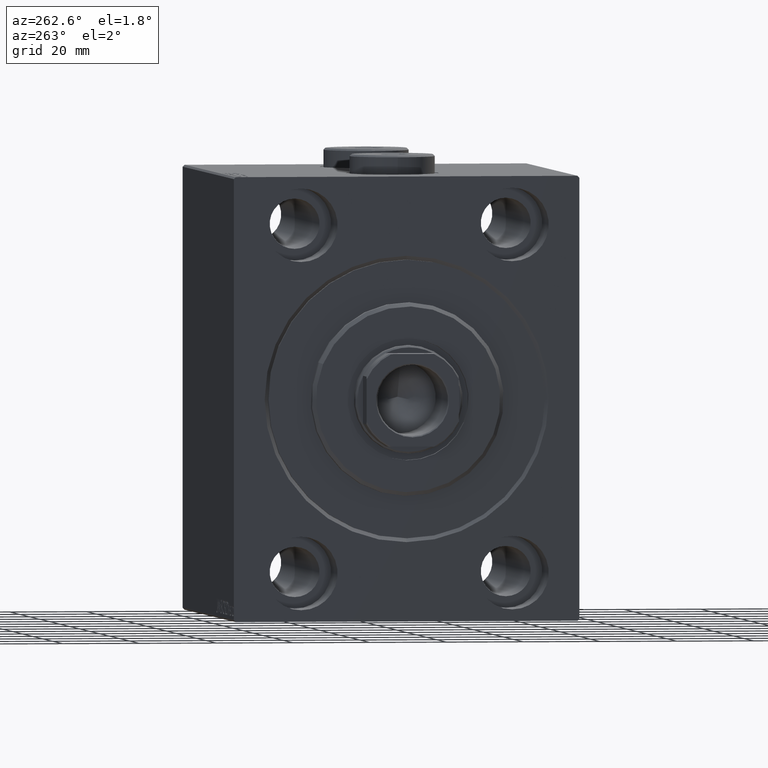
[diagram: clean part render]
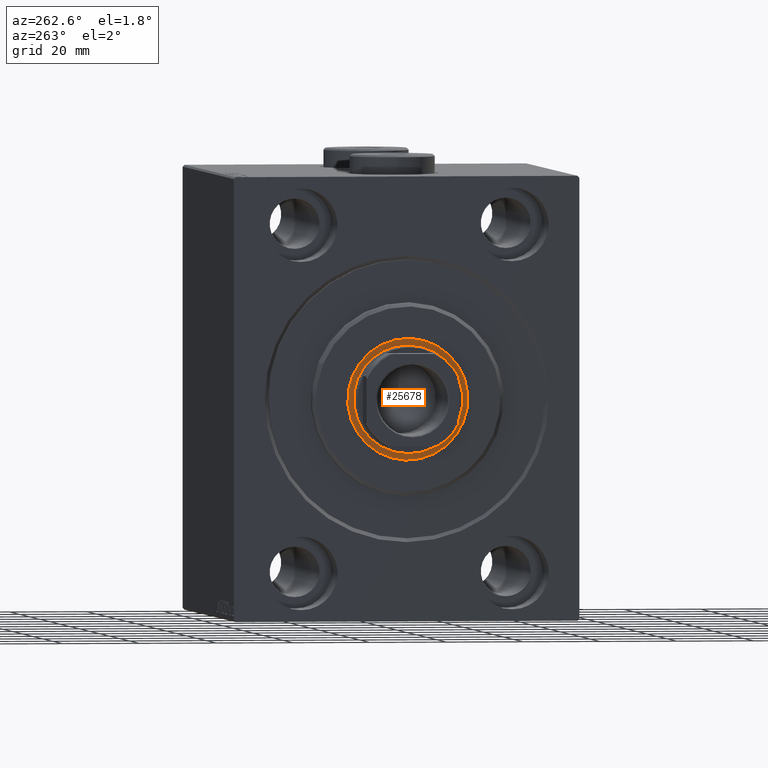
[diagram: same view with one face highlighted and labeled with its STEP entity id]
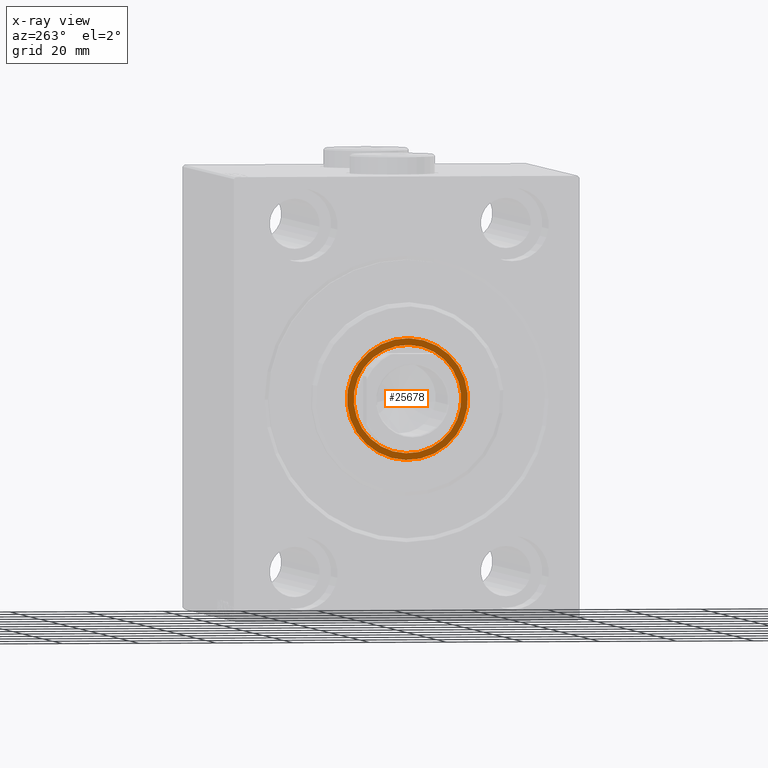
[diagram: x-ray of the same camera — body ghosted, the highlighted face saturated]
A machine part, auxiliary view. The second image highlights one B-rep face of the part: STEP entity #25678.
The next image is the same camera in x-ray: the body ghosted, the highlighted face saturated — about 0% of this face is hidden behind the body in this view.
In plain terms, the highlighted planar face has unit normal (-1, 0, 0).
Its self-contained STEP definition (entity closure, byte-faithful):
#94 = DIRECTION ( 'NONE',  ( 0.000000000000000000, 0.000000000000000000, -1.000000000000000000 ) ) ;
#637 = AXIS2_PLACEMENT_3D ( 'NONE', #44962, #27833, #13696 ) ;
#997 = DIRECTION ( 'NONE',  ( 0.000000000000000000, 0.000000000000000000, -1.000000000000000000 ) ) ;
#1815 = ORIENTED_EDGE ( 'NONE', *, *, #25836, .T. ) ;
#2380 = CARTESIAN_POINT ( 'NONE',  ( 1.500000000000001332, 1.714505518806294835E-15, 14.00000000000000178 ) ) ;
#6173 = CARTESIAN_POINT ( 'NONE',  ( 1.500000000000000000, 0.000000000000000000, 15.75000000000000000 ) ) ;
#7398 = CARTESIAN_POINT ( 'NONE',  ( 1.500000000000001332, 0.000000000000000000, 0.000000000000000000 ) ) ;
#7828 = DIRECTION ( 'NONE',  ( 1.000000000000000000, 0.000000000000000000, 0.000000000000000000 ) ) ;
#9743 = EDGE_CURVE ( 'NONE', #14191, #17977, #31210, .T. ) ;
#10168 = ORIENTED_EDGE ( 'NONE', *, *, #9743, .F. ) ;
#10992 = CIRCLE ( 'NONE', #17529, 14.00000000000000178 ) ;
#11483 = DIRECTION ( 'NONE',  ( 0.000000000000000000, 0.000000000000000000, -1.000000000000000000 ) ) ;
#11812 = VERTEX_POINT ( 'NONE', #6173 ) ;
#13696 = DIRECTION ( 'NONE',  ( 0.000000000000000000, 0.000000000000000000, -1.000000000000000000 ) ) ;
#13778 = CARTESIAN_POINT ( 'NONE',  ( 1.500000000000000000, 0.000000000000000000, 0.000000000000000000 ) ) ;
#14191 = VERTEX_POINT ( 'NONE', #2380 ) ;
#15439 = AXIS2_PLACEMENT_3D ( 'NONE', #25060, #39202, #43071 ) ;
#16808 = ORIENTED_EDGE ( 'NONE', *, *, #19364, .F. ) ;
#16879 = CARTESIAN_POINT ( 'NONE',  ( 1.500000000000000000, 1.928818708657080950E-15, -15.75000000000000000 ) ) ;
#16939 = AXIS2_PLACEMENT_3D ( 'NONE', #13778, #40943, #94 ) ;
#17529 = AXIS2_PLACEMENT_3D ( 'NONE', #7398, #21315, #997 ) ;
#17977 = VERTEX_POINT ( 'NONE', #26896 ) ;
#19364 = EDGE_CURVE ( 'NONE', #17977, #14191, #10992, .T. ) ;
#19841 = AXIS2_PLACEMENT_3D ( 'NONE', #28595, #7828, #11483 ) ;
#20348 = ORIENTED_EDGE ( 'NONE', *, *, #23635, .T. ) ;
#20750 = VERTEX_POINT ( 'NONE', #16879 ) ;
#20860 = PLANE ( 'NONE',  #16939 ) ;
#21315 = DIRECTION ( 'NONE',  ( 1.000000000000000000, 0.000000000000000000, 0.000000000000000000 ) ) ;
#23635 = EDGE_CURVE ( 'NONE', #11812, #20750, #35108, .T. ) ;
#23860 = EDGE_LOOP ( 'NONE', ( #20348, #1815 ) ) ;
#25060 = CARTESIAN_POINT ( 'NONE',  ( 1.500000000000000000, 0.000000000000000000, 0.000000000000000000 ) ) ;
#25678 = ADVANCED_FACE ( 'NONE', ( #37731, #31342 ), #20860, .T. ) ;
#25836 = EDGE_CURVE ( 'NONE', #20750, #11812, #39502, .T. ) ;
#26896 = CARTESIAN_POINT ( 'NONE',  ( 1.500000000000001332, 0.000000000000000000, -14.00000000000000178 ) ) ;
#27833 = DIRECTION ( 'NONE',  ( 1.000000000000000000, 0.000000000000000000, 0.000000000000000000 ) ) ;
#28595 = CARTESIAN_POINT ( 'NONE',  ( 1.500000000000000000, 0.000000000000000000, 0.000000000000000000 ) ) ;
#31210 = CIRCLE ( 'NONE', #637, 14.00000000000000178 ) ;
#31342 = FACE_OUTER_BOUND ( 'NONE', #23860, .T. ) ;
#35108 = CIRCLE ( 'NONE', #15439, 15.75000000000000000 ) ;
#36429 = EDGE_LOOP ( 'NONE', ( #16808, #10168 ) ) ;
#37731 = FACE_BOUND ( 'NONE', #36429, .T. ) ;
#39202 = DIRECTION ( 'NONE',  ( 1.000000000000000000, 0.000000000000000000, 0.000000000000000000 ) ) ;
#39502 = CIRCLE ( 'NONE', #19841, 15.75000000000000000 ) ;
#40943 = DIRECTION ( 'NONE',  ( 1.000000000000000000, 0.000000000000000000, 0.000000000000000000 ) ) ;
#43071 = DIRECTION ( 'NONE',  ( 0.000000000000000000, 0.000000000000000000, -1.000000000000000000 ) ) ;
#44962 = CARTESIAN_POINT ( 'NONE',  ( 1.500000000000001332, 0.000000000000000000, 0.000000000000000000 ) ) ;